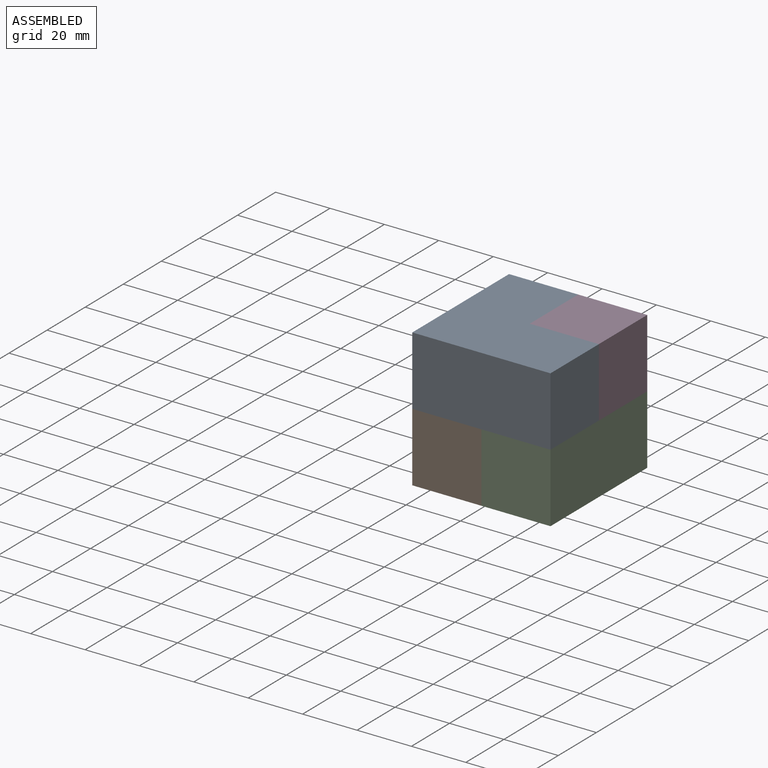
[diagram: assembled view]
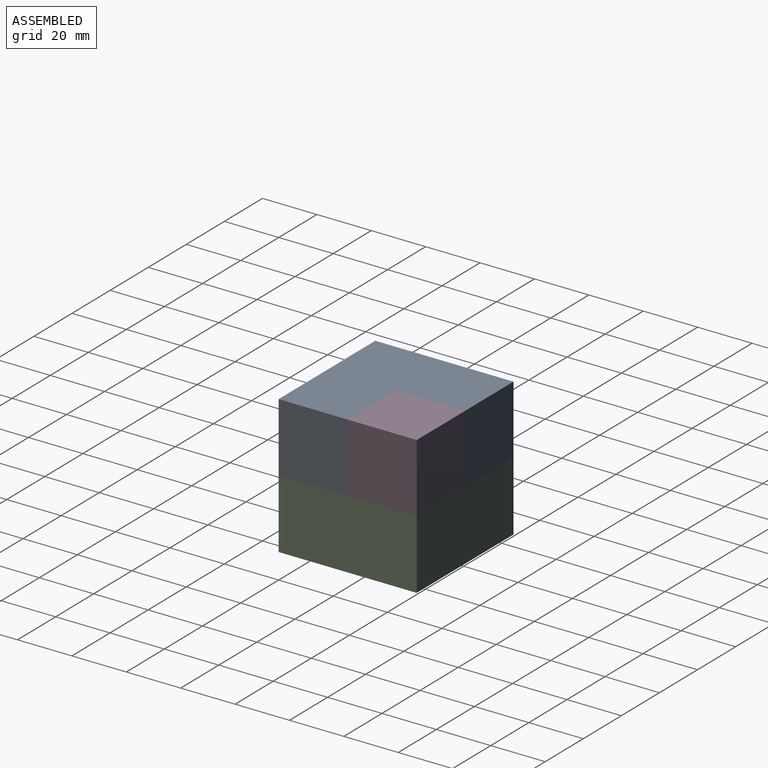
[diagram: assembled view, second angle]
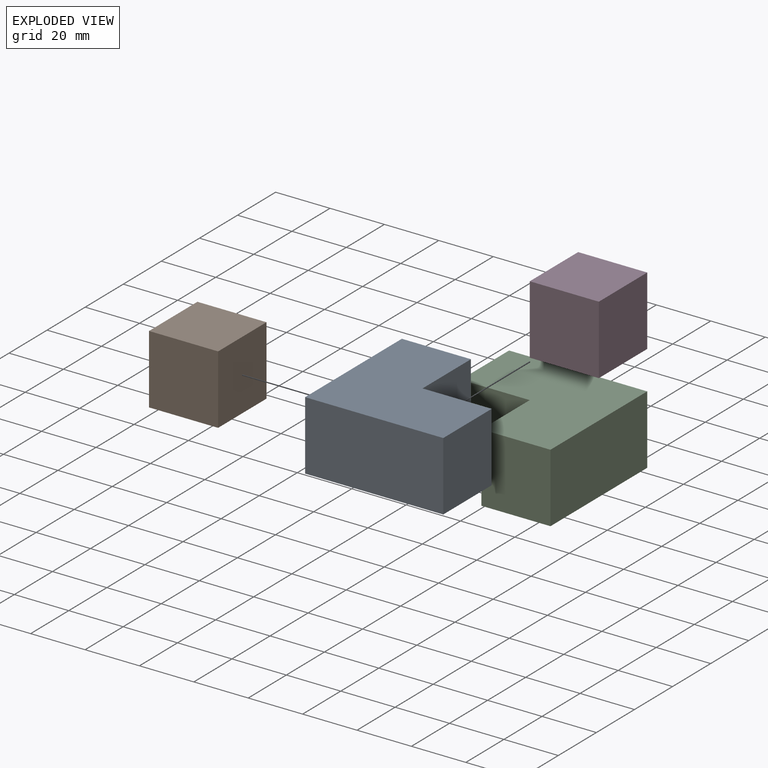
[diagram: exploded view]
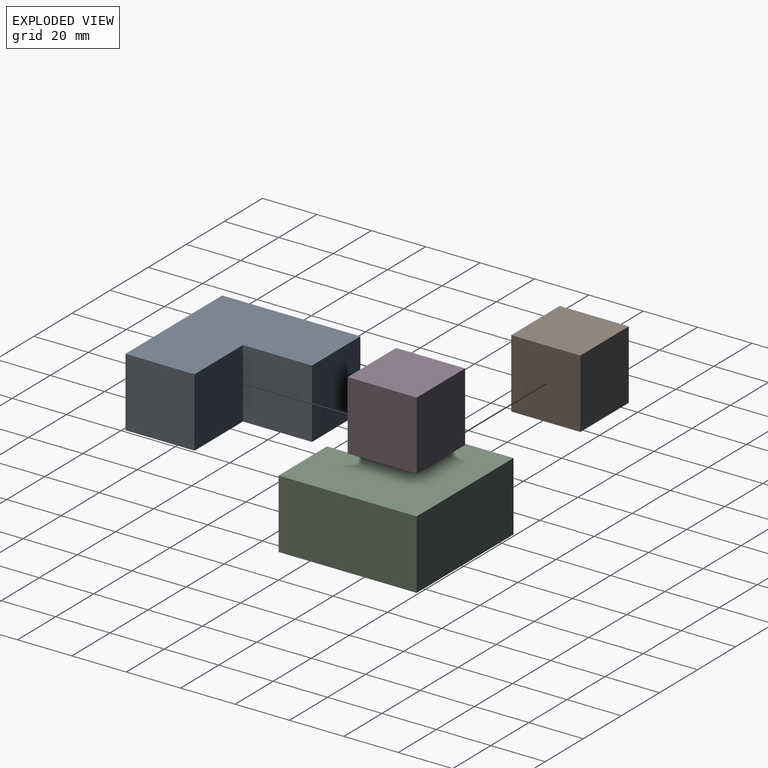
[diagram: exploded view, second angle]
ASSEMBLY  parts=4 mates=3
PART A: 8 faces, bbox 50.8x25.4x50.8 mm
  f0: plane 25.4x25.4mm, normal (0,0,1), area 645.2mm2, adj f2,f3,f4,f6
  f1: plane 50.8x25.4mm, normal (-1,0,0), area 1290.3mm2, adj f2,f4,f5,f7
  f2: plane 50.8x50.8mm, normal (0,-1,0), area 1935.5mm2, adj f0,f1,f3,f5,f6,f7
  f3: plane 25.4x25.4mm, normal (1,0,0), area 645.2mm2, adj f0,f2,f4,f5
  f4: plane 50.8x50.8mm, normal (0,1,0), area 1935.5mm2, adj f0,f1,f3,f5,f6,f7
  f5: plane 50.8x25.4mm, normal (0,0,-1), area 1290.3mm2, adj f1,f2,f3,f4
  f6: plane 25.4x25.4mm, normal (1,0,0), area 645.2mm2, adj f0,f2,f4,f7
  f7: plane 25.4x25.4mm, normal (0,0,1), area 645.2mm2, adj f1,f2,f4,f6
PART B: 6 faces, bbox 25.4x25.4x25.4 mm
  f0: plane 25.4x25.4mm, normal (-1,0,0), area 645.2mm2, adj f1,f3,f4,f5
  f1: plane 25.4x25.4mm, normal (0,-1,0), area 645.2mm2, adj f0,f2,f4,f5
  f2: plane 25.4x25.4mm, normal (1,0,0), area 645.2mm2, adj f1,f3,f4,f5
  f3: plane 25.4x25.4mm, normal (0,1,0), area 645.2mm2, adj f0,f2,f4,f5
  f4: plane 25.4x25.4mm, normal (0,0,1), area 645.2mm2, adj f0,f1,f2,f3
  f5: plane 25.4x25.4mm, normal (0,0,-1), area 645.2mm2, adj f0,f1,f2,f3
PART C: same geometry as A
PART D: same geometry as B
PLACE A rot(axis=(-1,0,0),90deg) t=(-4.49,-9.83,40.58)mm
PLACE B t=(-5.18,-4.17,2.1)mm fixed
PLACE C rot(axis=(0.58,-0.58,-0.58),120deg) t=(25.98,20.64,14.42)mm
PLACE D rot(axis=(0.58,0.58,-0.58),120deg) t=(6.24,40.97,33.27)mm
MATE fastened C.f0 <-> B.f2  axis (-1,0,0) through (0.58,-9.83,2.1)mm
MATE fastened C.f5 <-> D.f3  axis (-1,0,0) through (25.98,40.97,27.5)mm
MATE fastened A.f0 <-> D.f4  axis (0,1,0) through (13.28,15.57,40.2)mm
